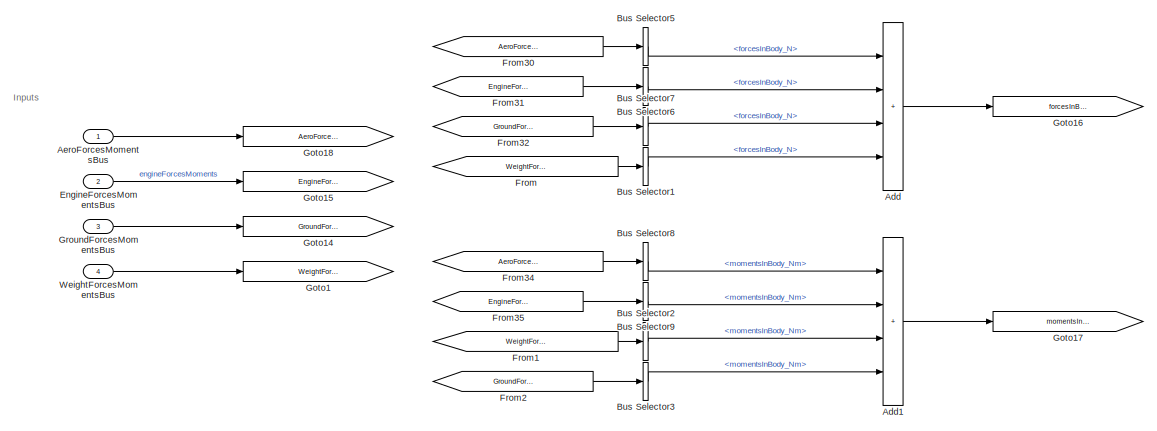
[diagram: root canvas - part 1/2, center side, full height]
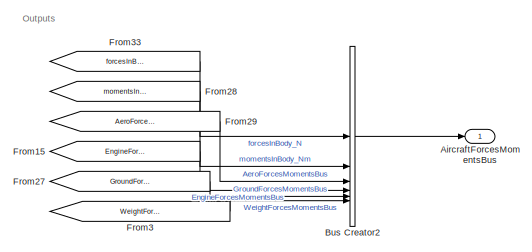
[diagram: root canvas - part 2/2, middle right region]
MODEL slx_c8a553246d2f
KIND model
CONFIG AbsTol = auto
CONFIG EnableMultiTasking = off
CONFIG FixedStep = auto
CONFIG MaxStep = auto
CONFIG MinStep = auto
CONFIG RelTol = 1e-3
CONFIG SampleTimeConstraint = Unconstrained
CONFIG SolverName = VariableStepAuto
CONFIG StartTime = 0.0
CONFIG StopTime = inf
BLOCK [Sum] Add
  IconShape = rectangular
  Inputs = ++++
BLOCK [Sum] Add1
  IconShape = rectangular
  Inputs = ++++
BLOCK [Inport] AeroForcesMomentsBus
  OutDataTypeStr = Bus: ComponentForcesMomentsBus
  SampleTime = 0
BLOCK [Outport] AircraftForcesMomentsBus
  OutDataTypeStr = Bus: AircraftForcesMomentsBus
  SampleTime = 0
BLOCK [BusCreator] Bus Creator2
  DisplayOption = bar
  InheritFromInputs = on
  Inputs = 6
  OutDataTypeStr = Bus: AircraftForcesMomentsBus
BLOCK [BusSelector] Bus Selector1
  OutputSignals = forcesInBody_N
BLOCK [BusSelector] Bus Selector2
  OutputSignals = momentsInBody_Nm
BLOCK [BusSelector] Bus Selector3
  OutputSignals = momentsInBody_Nm
BLOCK [BusSelector] Bus Selector5
  OutputSignals = forcesInBody_N
BLOCK [BusSelector] Bus Selector6
  OutputSignals = forcesInBody_N
BLOCK [BusSelector] Bus Selector7
  OutputSignals = forcesInBody_N
BLOCK [BusSelector] Bus Selector8
  OutputSignals = momentsInBody_Nm
BLOCK [BusSelector] Bus Selector9
  OutputSignals = momentsInBody_Nm
BLOCK [Inport] EngineForcesMomentsBus
  OutDataTypeStr = Bus: ComponentForcesMomentsBus
  Port = 2
BLOCK [From] From
  GotoTag = WeightForcesMomentsBus
BLOCK [From] From1
  GotoTag = WeightForcesMomentsBus
BLOCK [From] From15
  GotoTag = EngineForcesMoments
BLOCK [From] From2
  GotoTag = GroundForcesMoments
BLOCK [From] From27
  GotoTag = GroundForcesMoments
BLOCK [From] From28
  GotoTag = momentsInBody_Nm
BLOCK [From] From29
  GotoTag = AeroForcesMomentsBus
BLOCK [From] From3
  GotoTag = WeightForcesMomentsBus
BLOCK [From] From30
  GotoTag = AeroForcesMomentsBus
BLOCK [From] From31
  GotoTag = EngineForcesMoments
BLOCK [From] From32
  GotoTag = GroundForcesMoments
BLOCK [From] From33
  GotoTag = forcesInBody_N
BLOCK [From] From34
  GotoTag = AeroForcesMomentsBus
BLOCK [From] From35
  GotoTag = EngineForcesMoments
BLOCK [Goto] Goto1
  GotoTag = WeightForcesMomentsBus
BLOCK [Goto] Goto14
  GotoTag = GroundForcesMoments
BLOCK [Goto] Goto15
  GotoTag = EngineForcesMoments
BLOCK [Goto] Goto16
  GotoTag = forcesInBody_N
BLOCK [Goto] Goto17
  GotoTag = momentsInBody_Nm
BLOCK [Goto] Goto18
  GotoTag = AeroForcesMomentsBus
BLOCK [Inport] GroundForcesMomentsBus
  OutDataTypeStr = Bus: ComponentForcesMomentsBus
  Port = 3
  SampleTime = 0
BLOCK [Inport] WeightForcesMomentsBus
  OutDataTypeStr = Bus: ComponentForcesMomentsBus
  Port = 4
  SampleTime = 0
ANNOTATION (root): Inputs
ANNOTATION (root): Outputs
LINE Add1:1 -> Goto17:1
LINE Add:1 -> Goto16:1
LINE AeroForcesMomentsBus:1 -> Goto18:1
LINE Bus Creator2:1 -> AircraftForcesMomentsBus:1
LINE Bus Selector1:1 -> Add:4
LINE Bus Selector2:1 -> Add1:3
LINE Bus Selector3:1 -> Add1:4
LINE Bus Selector5:1 -> Add:1
LINE Bus Selector6:1 -> Add:2
LINE Bus Selector7:1 -> Add:3
LINE Bus Selector8:1 -> Add1:1
LINE Bus Selector9:1 -> Add1:2
LINE EngineForcesMomentsBus:1 -> Goto15:1
LINE From15:1 -> Bus Creator2:4
LINE From1:1 -> Bus Selector2:1
LINE From27:1 -> Bus Creator2:5
LINE From28:1 -> Bus Creator2:2
LINE From29:1 -> Bus Creator2:3
LINE From2:1 -> Bus Selector3:1
LINE From30:1 -> Bus Selector5:1
LINE From31:1 -> Bus Selector6:1
LINE From32:1 -> Bus Selector7:1
LINE From33:1 -> Bus Creator2:1
LINE From34:1 -> Bus Selector8:1
LINE From35:1 -> Bus Selector9:1
LINE From3:1 -> Bus Creator2:6
LINE From:1 -> Bus Selector1:1
LINE GroundForcesMomentsBus:1 -> Goto14:1
LINE WeightForcesMomentsBus:1 -> Goto1:1
